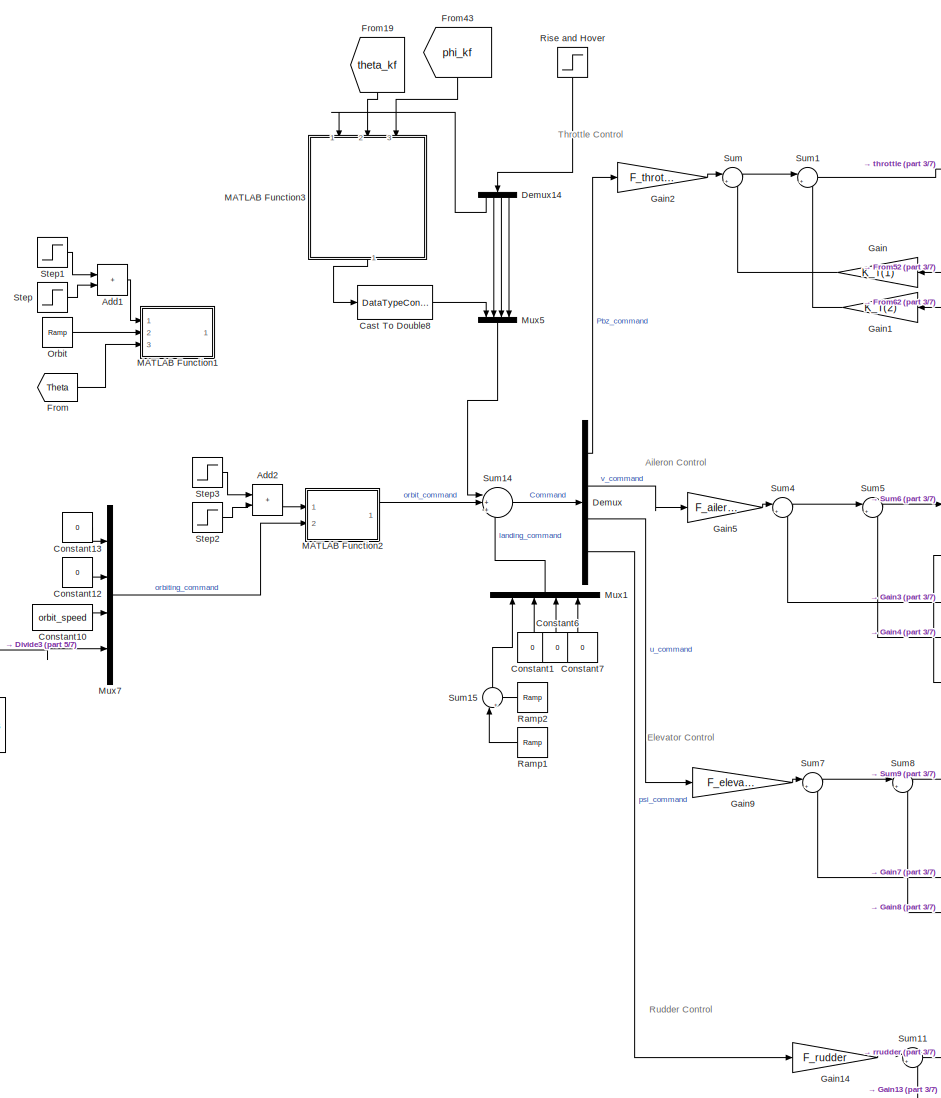
[diagram: root canvas - part 1/7, middle left region]
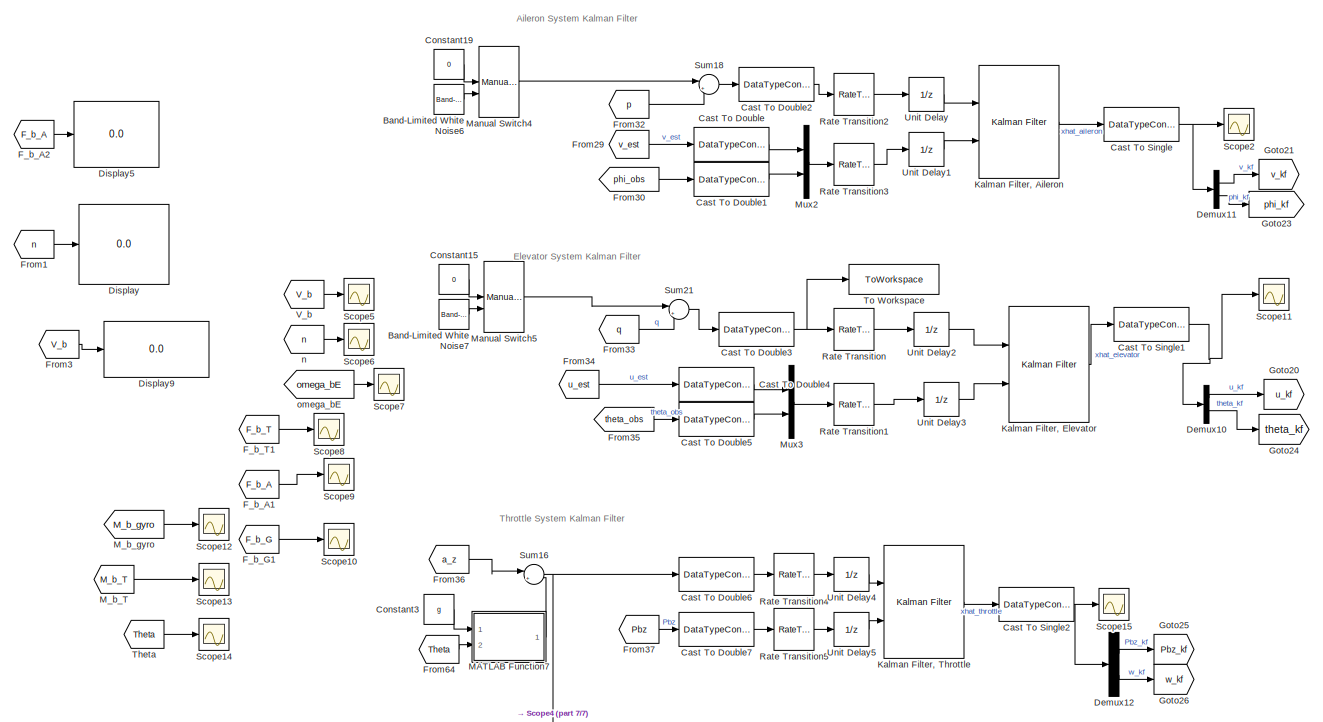
[diagram: root canvas - part 2/7, top right region]
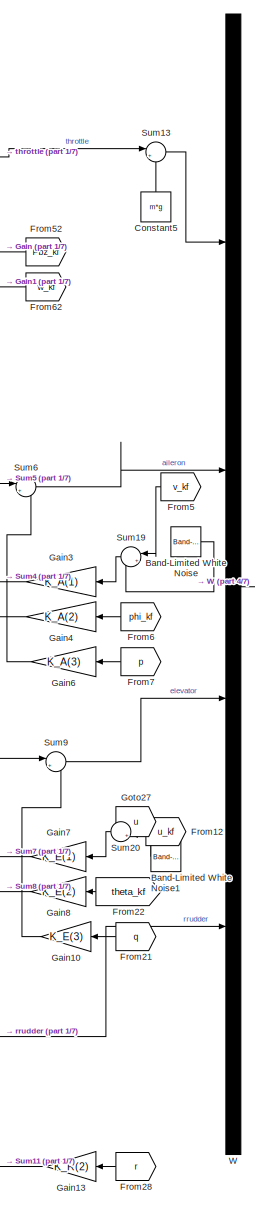
[diagram: root canvas - part 3/7, left side, full height]
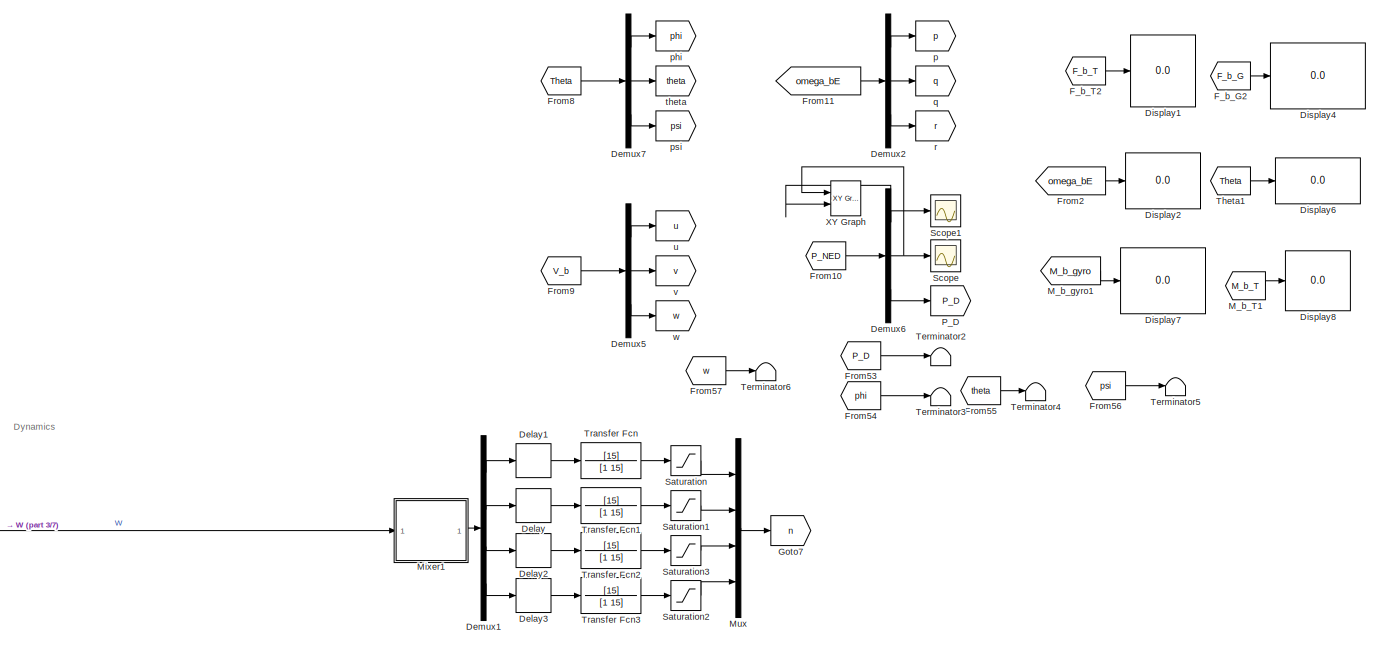
[diagram: root canvas - part 4/7, top center region]
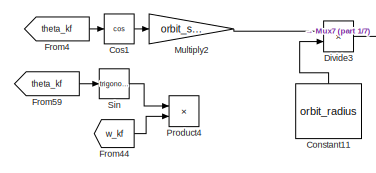
[diagram: root canvas - part 5/7, middle left region]
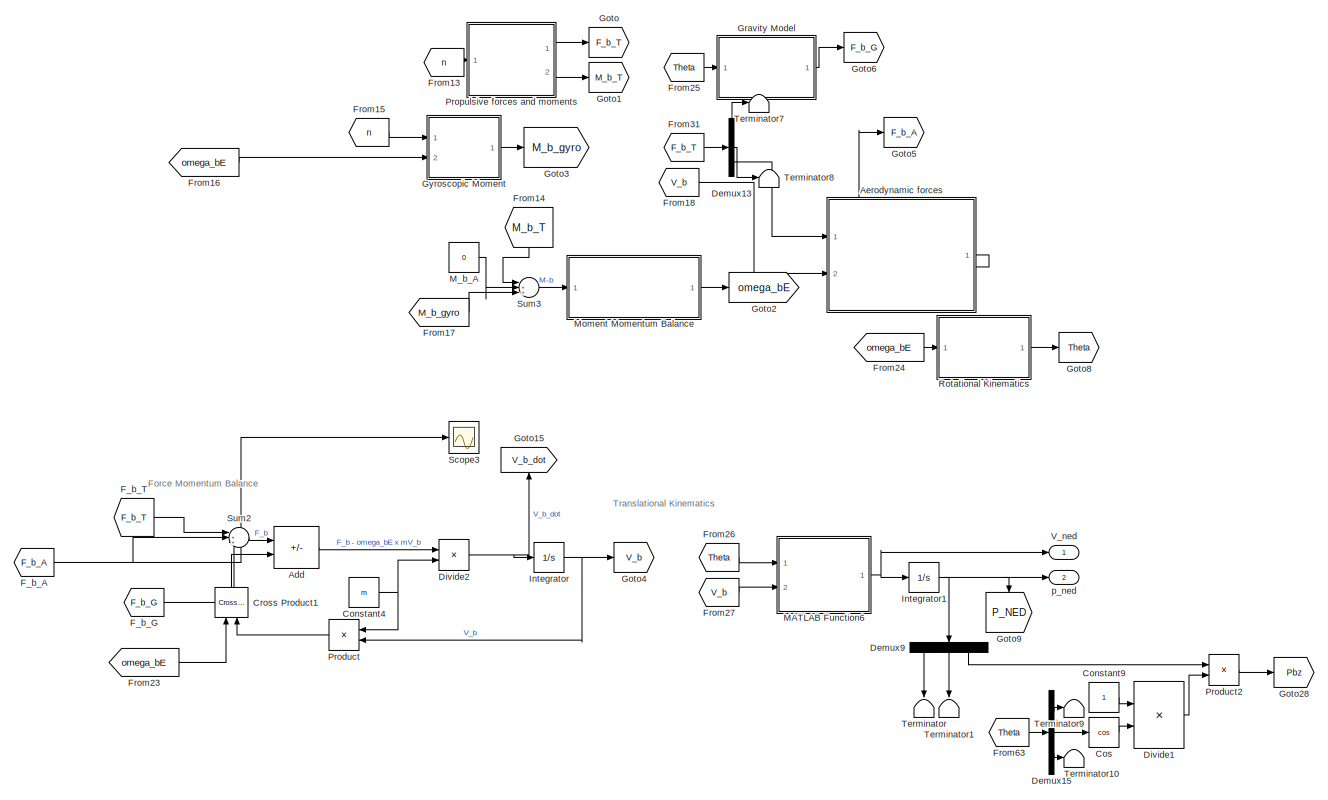
[diagram: root canvas - part 6/7, bottom center region]
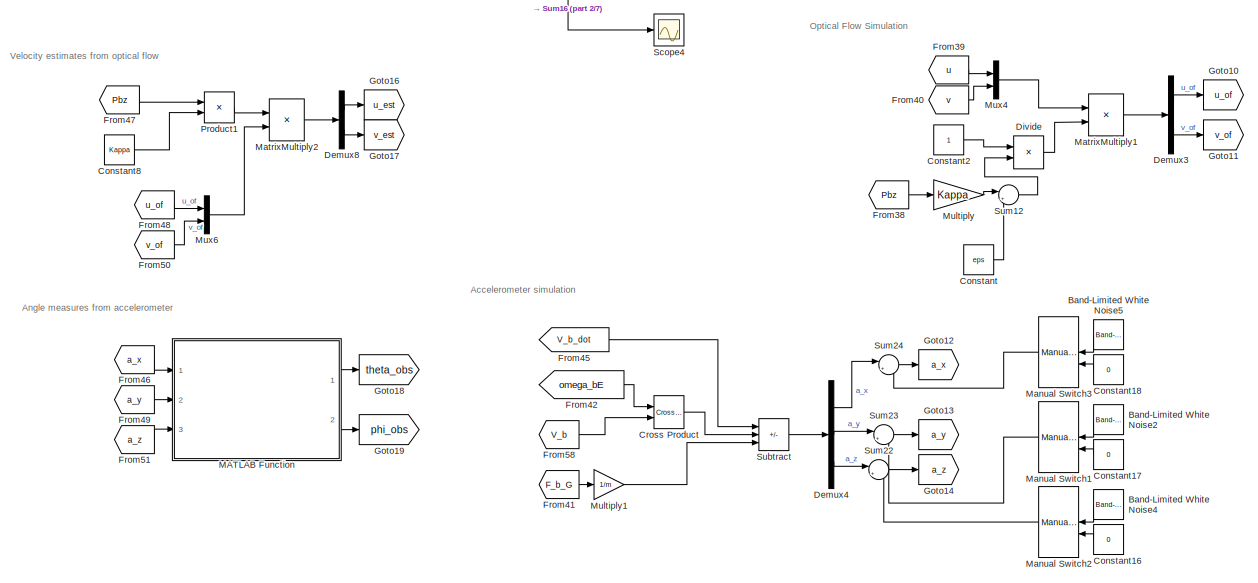
[diagram: root canvas - part 7/7, bottom right region]
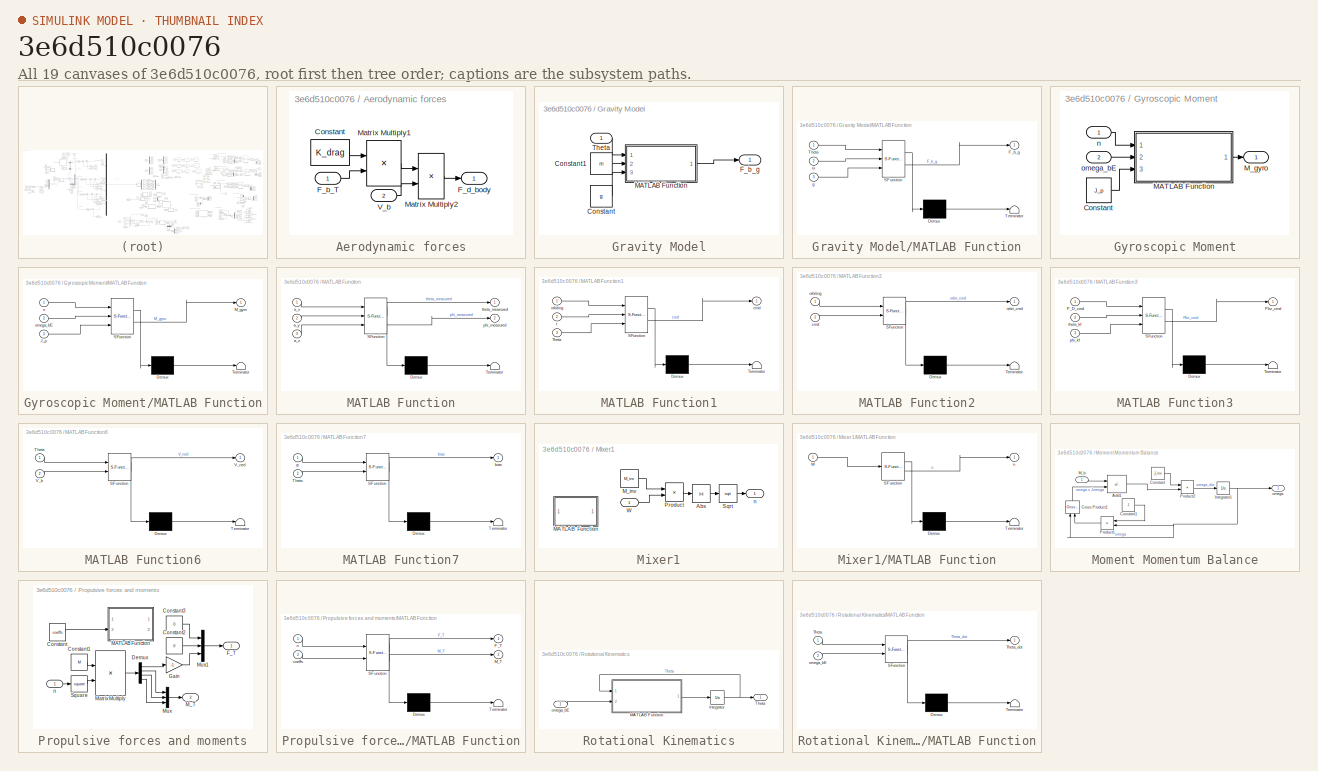
[diagram: thumbnail index - all 19 canvases of the model, root first then tree order]
MODEL slx_3e6d510c0076
KIND model
CONFIG AbsTol = auto
CONFIG EnableMultiTasking = off
CONFIG FixedStep = auto
CONFIG MaxStep = auto
CONFIG MinStep = auto
CONFIG RelTol = 1e-3
CONFIG SampleTimeConstraint = Unconstrained
CONFIG SolverName = VariableStepAuto
CONFIG StartTime = 0.0
CONFIG StopTime = 50
WORKSPACE source: mxarray member
WORKSPACE Kappa = 1
BLOCK [Sum] Add
  IconShape = rectangular
  Inputs = +-
  Ports = [2, 1]
BLOCK [Sum] Add1
  Commented = on
  IconShape = rectangular
  Ports = [2, 1]
BLOCK [Sum] Add2
  IconShape = rectangular
  Ports = [2, 1]
BLOCK [SubSystem] Aerodynamic forces
  Ports = [2, 1]
  RequestExecContextInheritance = off
BLOCK [Constant] Aerodynamic forces/Constant
  Value = K_drag
BLOCK [Inport] Aerodynamic forces/F_b_T
BLOCK [Outport] Aerodynamic forces/F_d_body
BLOCK [Product] Aerodynamic forces/Matrix Multiply1
  Ports = [2, 1]
BLOCK [Product] Aerodynamic forces/Matrix Multiply2
  Multiplication = Matrix(*)
  Ports = [2, 1]
BLOCK [Inport] Aerodynamic forces/V_b
  Port = 2
BLOCK [Reference] Band-Limited White Noise  REF=simulink/Sources/Band-Limited
White Noise
  Ports = [0, 1]
  SourceBlock = simulink/Sources/Band-Limited\nWhite Noise
  SourceProductBaseCode = SL
  SourceType = Band-Limited White Noise.
BLOCK [Reference] Band-Limited White Noise1  REF=simulink/Sources/Band-Limited
White Noise
  Ports = [0, 1]
  SourceBlock = simulink/Sources/Band-Limited\nWhite Noise
  SourceProductBaseCode = SL
  SourceType = Band-Limited White Noise.
BLOCK [Reference] Band-Limited White Noise2  REF=simulink/Sources/Band-Limited
White Noise
  NameLocation = top
  Ports = [0, 1]
  SourceBlock = simulink/Sources/Band-Limited\nWhite Noise
  SourceProductBaseCode = SL
  SourceType = Band-Limited White Noise.
BLOCK [Reference] Band-Limited White Noise4  REF=simulink/Sources/Band-Limited
White Noise
  NameLocation = top
  Ports = [0, 1]
  SourceBlock = simulink/Sources/Band-Limited\nWhite Noise
  SourceProductBaseCode = SL
  SourceType = Band-Limited White Noise.
BLOCK [Reference] Band-Limited White Noise5  REF=simulink/Sources/Band-Limited
White Noise
  NameLocation = top
  Ports = [0, 1]
  SourceBlock = simulink/Sources/Band-Limited\nWhite Noise
  SourceProductBaseCode = SL
  SourceType = Band-Limited White Noise.
BLOCK [Reference] Band-Limited White Noise6  REF=simulink/Sources/Band-Limited
White Noise
  Ports = [0, 1]
  SourceBlock = simulink/Sources/Band-Limited\nWhite Noise
  SourceProductBaseCode = SL
  SourceType = Band-Limited White Noise.
BLOCK [Reference] Band-Limited White Noise7  REF=simulink/Sources/Band-Limited
White Noise
  Ports = [0, 1]
  SourceBlock = simulink/Sources/Band-Limited\nWhite Noise
  SourceProductBaseCode = SL
  SourceType = Band-Limited White Noise.
BLOCK [DataTypeConversion] Cast To Double
  OutDataTypeStr = double
  RndMeth = Floor
  SaturateOnIntegerOverflow = off
BLOCK [DataTypeConversion] Cast To Double1
  OutDataTypeStr = double
  RndMeth = Floor
  SaturateOnIntegerOverflow = off
BLOCK [DataTypeConversion] Cast To Double2
  OutDataTypeStr = double
  RndMeth = Floor
  SaturateOnIntegerOverflow = off
BLOCK [DataTypeConversion] Cast To Double3
  OutDataTypeStr = double
  RndMeth = Floor
  SaturateOnIntegerOverflow = off
BLOCK [DataTypeConversion] Cast To Double4
  OutDataTypeStr = double
  RndMeth = Floor
  SaturateOnIntegerOverflow = off
BLOCK [DataTypeConversion] Cast To Double5
  OutDataTypeStr = double
  RndMeth = Floor
  SaturateOnIntegerOverflow = off
BLOCK [DataTypeConversion] Cast To Double6
  OutDataTypeStr = double
  RndMeth = Floor
  SaturateOnIntegerOverflow = off
BLOCK [DataTypeConversion] Cast To Double7
  OutDataTypeStr = double
  RndMeth = Floor
  SaturateOnIntegerOverflow = off
BLOCK [DataTypeConversion] Cast To Double8
  OutDataTypeStr = double
  RndMeth = Floor
  SaturateOnIntegerOverflow = off
BLOCK [DataTypeConversion] Cast To Single
  OutDataTypeStr = single
  RndMeth = Floor
  SaturateOnIntegerOverflow = off
BLOCK [DataTypeConversion] Cast To Single1
  OutDataTypeStr = single
  RndMeth = Floor
  SaturateOnIntegerOverflow = off
BLOCK [DataTypeConversion] Cast To Single2
  OutDataTypeStr = single
  RndMeth = Floor
  SaturateOnIntegerOverflow = off
BLOCK [Constant] Constant
  Value = eps
BLOCK [Constant] Constant1
  NameLocation = right
  Value = 0
BLOCK [Constant] Constant10
  Value = orbit_speed
BLOCK [Constant] Constant11
  NameLocation = right
  Value = orbit_radius
BLOCK [Constant] Constant12
  Value = 0
BLOCK [Constant] Constant13
  Value = 0
BLOCK [Constant] Constant15
  Value = 0
BLOCK [Constant] Constant16
  NameLocation = top
  Value = 0
BLOCK [Constant] Constant17
  NameLocation = top
  Value = 0
BLOCK [Constant] Constant18
  NameLocation = top
  Value = 0
BLOCK [Constant] Constant19
  Value = 0
BLOCK [Constant] Constant2
BLOCK [Constant] Constant3
  Value = g
BLOCK [Constant] Constant4
  Value = m
BLOCK [Constant] Constant5
  NameLocation = right
  Value = m*g
BLOCK [Constant] Constant6
  NameLocation = right
  Value = 0
BLOCK [Constant] Constant7
  NameLocation = right
  Value = 0
BLOCK [Constant] Constant8
  Value = Kappa
BLOCK [Constant] Constant9
BLOCK [Trigonometry] Cos
  Operator = cos
  Ports = [1, 1]
BLOCK [Trigonometry] Cos1
  Operator = cos
  Ports = [1, 1]
BLOCK [Reference] Cross Product  REF=vrlib/Utilities/Cross Product
  Ports = [2, 1]
  SourceBlock = vrlib/Utilities/Cross Product
  SourceProductBaseCode = SL
  SourceType = Cross Product
BLOCK [Reference] Cross Product1  REF=vrlib/Utilities/Cross Product
  NameLocation = right
  Ports = [2, 1]
  SourceBlock = vrlib/Utilities/Cross Product
  SourceProductBaseCode = SL
  SourceType = Cross Product
BLOCK [Delay] Delay
  InputPortMap = u0
  Ports = [1, 1]
  SampleTime = 1/200
BLOCK [Delay] Delay1
  InputPortMap = u0
  Ports = [1, 1]
  SampleTime = 1/200
BLOCK [Delay] Delay2
  InputPortMap = u0
  Ports = [1, 1]
  SampleTime = 1/200
BLOCK [Delay] Delay3
  InputPortMap = u0
  Ports = [1, 1]
  SampleTime = 1/200
BLOCK [Demux] Demux
  Ports = [1, 4]
BLOCK [Demux] Demux1
  Ports = [1, 4]
BLOCK [Demux] Demux10
  Outputs = 2
  Ports = [1, 2]
BLOCK [Demux] Demux11
  Outputs = 2
  Ports = [1, 2]
BLOCK [Demux] Demux12
  Outputs = 2
  Ports = [1, 2]
BLOCK [Demux] Demux13
  Outputs = 3
  Ports = [1, 3]
BLOCK [Demux] Demux14
  NameLocation = left
  Ports = [1, 4]
BLOCK [Demux] Demux15
  Outputs = 3
  Ports = [1, 3]
BLOCK [Demux] Demux2
  Outputs = 3
  Ports = [1, 3]
BLOCK [Demux] Demux3
  Outputs = 2
  Ports = [1, 2]
BLOCK [Demux] Demux4
  Outputs = 3
  Ports = [1, 3]
BLOCK [Demux] Demux5
  Outputs = 3
  Ports = [1, 3]
BLOCK [Demux] Demux6
  Outputs = 3
  Ports = [1, 3]
BLOCK [Demux] Demux7
  Outputs = 3
  Ports = [1, 3]
BLOCK [Demux] Demux8
  Outputs = 2
  Ports = [1, 2]
BLOCK [Demux] Demux9
  NameLocation = left
  Outputs = 3
  Ports = [1, 3]
BLOCK [Display] Display
  Decimation = 1
  Ports = [1]
BLOCK [Display] Display1
  Decimation = 1
  Ports = [1]
BLOCK [Display] Display2
  Decimation = 1
  Ports = [1]
BLOCK [Display] Display4
  Decimation = 1
  Ports = [1]
BLOCK [Display] Display5
  Decimation = 1
  Ports = [1]
BLOCK [Display] Display6
  Decimation = 1
  Ports = [1]
BLOCK [Display] Display7
  Decimation = 1
  Ports = [1]
BLOCK [Display] Display8
  Decimation = 1
  Ports = [1]
BLOCK [Display] Display9
  Decimation = 1
  Ports = [1]
BLOCK [Product] Divide
  Inputs = */
  Ports = [2, 1]
BLOCK [Product] Divide1
  Inputs = */
  Ports = [2, 1]
BLOCK [Product] Divide2
  Inputs = */
  Ports = [2, 1]
BLOCK [Product] Divide3
  Inputs = */
  Ports = [2, 1]
BLOCK [From] F_b_A
  GotoTag = F_b_A
BLOCK [From] F_b_A1
  GotoTag = F_b_A
BLOCK [From] F_b_A2
  GotoTag = F_b_A
BLOCK [From] F_b_G
  GotoTag = F_b_G
BLOCK [From] F_b_G1
  GotoTag = F_b_G
BLOCK [From] F_b_G2
  GotoTag = F_b_G
BLOCK [From] F_b_T
  GotoTag = F_b_T
BLOCK [From] F_b_T1
  GotoTag = F_b_T
BLOCK [From] F_b_T2
  GotoTag = F_b_T
BLOCK [From] From
  Commented = on
  GotoTag = Theta
BLOCK [From] From1
  GotoTag = n
BLOCK [From] From10
  GotoTag = P_NED
BLOCK [From] From11
  GotoTag = omega_bE
BLOCK [From] From12
  GotoTag = u_kf
  NameLocation = top
BLOCK [From] From13
  GotoTag = n
BLOCK [From] From14
  GotoTag = M_b_T
  NameLocation = left
BLOCK [From] From15
  GotoTag = n
BLOCK [From] From16
  GotoTag = omega_bE
BLOCK [From] From17
  GotoTag = M_b_gyro
BLOCK [From] From18
  GotoTag = V_b
BLOCK [From] From19
  GotoTag = theta_kf
  NameLocation = left
BLOCK [From] From2
  GotoTag = omega_bE
BLOCK [From] From21
  GotoTag = q
  NameLocation = top
BLOCK [From] From22
  GotoTag = theta_kf
  NameLocation = top
BLOCK [From] From23
  GotoTag = omega_bE
BLOCK [From] From24
  GotoTag = omega_bE
BLOCK [From] From25
  GotoTag = Theta
BLOCK [From] From26
  GotoTag = Theta
BLOCK [From] From27
  GotoTag = V_b
BLOCK [From] From28
  GotoTag = r
  NameLocation = top
BLOCK [From] From29
  GotoTag = v_est
BLOCK [From] From3
  GotoTag = V_b
BLOCK [From] From30
  GotoTag = phi_obs
BLOCK [From] From31
  GotoTag = F_b_T
BLOCK [From] From32
  GotoTag = p
BLOCK [From] From33
  GotoTag = q
BLOCK [From] From34
  GotoTag = u_est
BLOCK [From] From35
  GotoTag = theta_obs
BLOCK [From] From36
  GotoTag = a_z
BLOCK [From] From37
  GotoTag = Pbz
BLOCK [From] From38
  GotoTag = Pbz
BLOCK [From] From39
  GotoTag = u
BLOCK [From] From4
  GotoTag = theta_kf
BLOCK [From] From40
  GotoTag = v
BLOCK [From] From41
  GotoTag = F_b_G
BLOCK [From] From42
  GotoTag = omega_bE
BLOCK [From] From43
  GotoTag = phi_kf
  NameLocation = left
BLOCK [From] From44
  Commented = on
  GotoTag = w_kf
BLOCK [From] From45
  GotoTag = V_b_dot
BLOCK [From] From46
  GotoTag = a_x
BLOCK [From] From47
  GotoTag = Pbz
BLOCK [From] From48
  GotoTag = u_of
BLOCK [From] From49
  GotoTag = a_y
BLOCK [From] From5
  GotoTag = v_kf
  NameLocation = top
BLOCK [From] From50
  GotoTag = v_of
BLOCK [From] From51
  GotoTag = a_z
BLOCK [From] From52
  GotoTag = Pbz_kf
  NameLocation = top
BLOCK [From] From53
  GotoTag = P_D
BLOCK [From] From54
  GotoTag = phi
BLOCK [From] From55
  GotoTag = theta
BLOCK [From] From56
  GotoTag = psi
BLOCK [From] From57
  GotoTag = w
BLOCK [From] From58
  GotoTag = V_b
BLOCK [From] From59
  Commented = on
  GotoTag = theta_kf
BLOCK [From] From6
  GotoTag = phi_kf
  NameLocation = top
BLOCK [From] From62
  GotoTag = w_kf
  NameLocation = top
BLOCK [From] From63
  GotoTag = Theta
BLOCK [From] From64
  GotoTag = Theta
BLOCK [From] From7
  GotoTag = p
  NameLocation = top
BLOCK [From] From8
  GotoTag = Theta
BLOCK [From] From9
  GotoTag = V_b
BLOCK [Gain] Gain
  Gain = K_T(1)
BLOCK [Gain] Gain1
  Gain = K_T(2)
BLOCK [Gain] Gain10
  Gain = K_E(3)
BLOCK [Gain] Gain13
  Gain = K_R(2)
BLOCK [Gain] Gain14
  Gain = F_rudder
BLOCK [Gain] Gain2
  Gain = F_throttle
BLOCK [Gain] Gain3
  Gain = K_A(1)
BLOCK [Gain] Gain4
  Gain = K_A(2)
BLOCK [Gain] Gain5
  Gain = F_aileron
BLOCK [Gain] Gain6
  Gain = K_A(3)
BLOCK [Gain] Gain7
  Gain = K_E(1)
BLOCK [Gain] Gain8
  Gain = K_E(2)
BLOCK [Gain] Gain9
  Gain = F_elevator
BLOCK [Goto] Goto
  GotoTag = F_b_T
BLOCK [Goto] Goto1
  GotoTag = M_b_T
BLOCK [Goto] Goto10
  GotoTag = u_of
BLOCK [Goto] Goto11
  GotoTag = v_of
BLOCK [Goto] Goto12
  GotoTag = a_x
BLOCK [Goto] Goto13
  GotoTag = a_y
BLOCK [Goto] Goto14
  GotoTag = a_z
BLOCK [Goto] Goto15
  GotoTag = V_b_dot
  NameLocation = right
BLOCK [Goto] Goto16
  GotoTag = u_est
BLOCK [Goto] Goto17
  GotoTag = v_est
BLOCK [Goto] Goto18
  GotoTag = theta_obs
BLOCK [Goto] Goto19
  GotoTag = phi_obs
BLOCK [Goto] Goto2
  GotoTag = omega_bE
BLOCK [Goto] Goto20
  GotoTag = u_kf
BLOCK [Goto] Goto21
  GotoTag = v_kf
BLOCK [Goto] Goto23
  GotoTag = phi_kf
BLOCK [Goto] Goto24
  GotoTag = theta_kf
BLOCK [Goto] Goto25
  GotoTag = Pbz_kf
BLOCK [Goto] Goto26
  GotoTag = w_kf
BLOCK [Goto] Goto27
  Commented = on
  GotoTag = u
BLOCK [Goto] Goto28
  GotoTag = Pbz
BLOCK [Goto] Goto3
  GotoTag = M_b_gyro
BLOCK [Goto] Goto4
  GotoTag = V_b
BLOCK [Goto] Goto5
  GotoTag = F_b_A
BLOCK [Goto] Goto6
  GotoTag = F_b_G
BLOCK [Goto] Goto7
  GotoTag = n
BLOCK [Goto] Goto8
  GotoTag = Theta
BLOCK [Goto] Goto9
  GotoTag = P_NED
  NameLocation = left
BLOCK [SubSystem] Gravity Model
  Ports = [1, 1]
  RequestExecContextInheritance = off
BLOCK [Constant] Gravity Model/Constant
  Value = g
BLOCK [Constant] Gravity Model/Constant1
  Value = m
BLOCK [Outport] Gravity Model/F_b_g
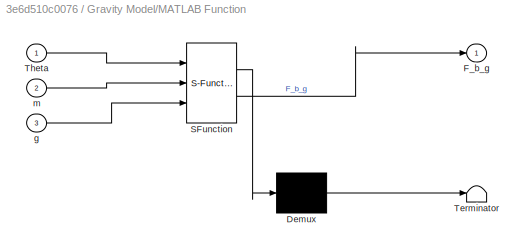
BLOCK [SubSystem] Gravity Model/MATLAB Function
  ErrorFcn = Stateflow.Translate.translate
  PermitHierarchicalResolution = ExplicitOnly
  Ports = [3, 1]
  RequestExecContextInheritance = off
  SFBlockType = MATLAB Function
  TreatAsAtomicUnit = on
BLOCK [Demux] Gravity Model/MATLAB Function/ Demux 
  Outputs = 1
  Ports = [1, 1]
BLOCK [S-Function] Gravity Model/MATLAB Function/ SFunction 
  EnableBusSupport = on
  FunctionName = sf_sfun
  PortCounts = [3 2]
  Ports = [3, 2]
  SFcnIsStateOwnerBlock = off
  SFunctionDeploymentMode = off
  Tag = Stateflow S-Function 12
BLOCK [Terminator] Gravity Model/MATLAB Function/ Terminator 
BLOCK [Outport] Gravity Model/MATLAB Function/F_b_g
BLOCK [Inport] Gravity Model/MATLAB Function/Theta
BLOCK [Inport] Gravity Model/MATLAB Function/g
  Port = 3
BLOCK [Inport] Gravity Model/MATLAB Function/m
  Port = 2
BLOCK [Inport] Gravity Model/Theta
BLOCK [SubSystem] Gyroscopic Moment
  Ports = [2, 1]
  RequestExecContextInheritance = off
BLOCK [Constant] Gyroscopic Moment/Constant
  Value = J_p
BLOCK [SubSystem] Gyroscopic Moment/MATLAB Function
  ErrorFcn = Stateflow.Translate.translate
  PermitHierarchicalResolution = ExplicitOnly
  Ports = [3, 1]
  RequestExecContextInheritance = off
  SFBlockType = MATLAB Function
  TreatAsAtomicUnit = on
BLOCK [Demux] Gyroscopic Moment/MATLAB Function/ Demux 
  Outputs = 1
  Ports = [1, 1]
BLOCK [S-Function] Gyroscopic Moment/MATLAB Function/ SFunction 
  EnableBusSupport = on
  FunctionName = sf_sfun
  PortCounts = [3 2]
  Ports = [3, 2]
  SFcnIsStateOwnerBlock = off
  SFunctionDeploymentMode = off
  Tag = Stateflow S-Function 11
BLOCK [Terminator] Gyroscopic Moment/MATLAB Function/ Terminator 
BLOCK [Inport] Gyroscopic Moment/MATLAB Function/J_p
  Port = 3
BLOCK [Outport] Gyroscopic Moment/MATLAB Function/M_gyro
BLOCK [Inport] Gyroscopic Moment/MATLAB Function/n
BLOCK [Inport] Gyroscopic Moment/MATLAB Function/omega_bE
  Port = 2
BLOCK [Outport] Gyroscopic Moment/M_gyro
BLOCK [Inport] Gyroscopic Moment/n
BLOCK [Inport] Gyroscopic Moment/omega_bE
  Port = 2
BLOCK [Integrator] Integrator
  AttributesFormatString = %<InitialCondition>
  InitialCondition = V_b_0
  Ports = [1, 1]
BLOCK [Integrator] Integrator1
  AttributesFormatString = %<InitialCondition>
  InitialCondition = p_ned_0
  Ports = [1, 1]
BLOCK [Reference] Kalman Filter, Aileron  REF=ctrlSharedLib/Kalman Filter
  Ports = [2, 1]
  SourceBlock = ctrlSharedLib/Kalman Filter
  SourceProductBaseCode = CT,ID
  SourceType = ctrlKalmanFilter
BLOCK [Reference] Kalman Filter, Elevator  REF=ctrlSharedLib/Kalman Filter
  Ports = [2, 1]
  SourceBlock = ctrlSharedLib/Kalman Filter
  SourceProductBaseCode = CT,ID
  SourceType = ctrlKalmanFilter
BLOCK [Reference] Kalman Filter, Throttle  REF=ctrlSharedLib/Kalman Filter
  Ports = [2, 1]
  SourceBlock = ctrlSharedLib/Kalman Filter
  SourceProductBaseCode = CT,ID
  SourceType = ctrlKalmanFilter
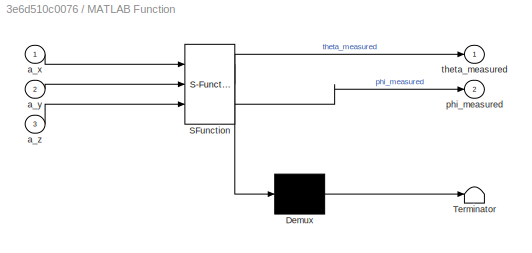
BLOCK [SubSystem] MATLAB Function
  ErrorFcn = Stateflow.Translate.translate
  PermitHierarchicalResolution = ExplicitOnly
  Ports = [3, 2]
  RequestExecContextInheritance = off
  SFBlockType = MATLAB Function
  TreatAsAtomicUnit = on
BLOCK [Demux] MATLAB Function/ Demux 
  Outputs = 1
  Ports = [1, 1]
BLOCK [S-Function] MATLAB Function/ SFunction 
  EnableBusSupport = on
  FunctionName = sf_sfun
  PortCounts = [3 3]
  Ports = [3, 3]
  SFcnIsStateOwnerBlock = off
  SFunctionDeploymentMode = off
  Tag = Stateflow S-Function 2
BLOCK [Terminator] MATLAB Function/ Terminator 
BLOCK [Inport] MATLAB Function/a_x
BLOCK [Inport] MATLAB Function/a_y
  Port = 2
BLOCK [Inport] MATLAB Function/a_z
  Port = 3
BLOCK [Outport] MATLAB Function/phi_measured
  Port = 2
BLOCK [Outport] MATLAB Function/theta_measured
BLOCK [SubSystem] MATLAB Function1
  Commented = on
  ErrorFcn = Stateflow.Translate.translate
  PermitHierarchicalResolution = ExplicitOnly
  Ports = [3, 1]
  RequestExecContextInheritance = off
  SFBlockType = MATLAB Function
  TreatAsAtomicUnit = on
BLOCK [Demux] MATLAB Function1/ Demux 
  Outputs = 1
  Ports = [1, 1]
BLOCK [S-Function] MATLAB Function1/ SFunction 
  EnableBusSupport = on
  FunctionName = sf_sfun
  PortCounts = [3 2]
  Ports = [3, 2]
  SFcnIsStateOwnerBlock = off
  SFunctionDeploymentMode = off
  Tag = Stateflow S-Function 1
BLOCK [Terminator] MATLAB Function1/ Terminator 
BLOCK [Inport] MATLAB Function1/Theta
  Port = 3
BLOCK [Outport] MATLAB Function1/cmd
BLOCK [Inport] MATLAB Function1/orbiting
BLOCK [Inport] MATLAB Function1/t
  Port = 2
BLOCK [SubSystem] MATLAB Function2
  ErrorFcn = Stateflow.Translate.translate
  PermitHierarchicalResolution = ExplicitOnly
  Ports = [2, 1]
  RequestExecContextInheritance = off
  SFBlockType = MATLAB Function
  TreatAsAtomicUnit = on
BLOCK [Demux] MATLAB Function2/ Demux 
  Outputs = 1
  Ports = [1, 1]
BLOCK [S-Function] MATLAB Function2/ SFunction 
  EnableBusSupport = on
  FunctionName = sf_sfun
  PortCounts = [2 2]
  Ports = [2, 2]
  SFcnIsStateOwnerBlock = off
  SFunctionDeploymentMode = off
  Tag = Stateflow S-Function 3
BLOCK [Terminator] MATLAB Function2/ Terminator 
BLOCK [Inport] MATLAB Function2/cmd
  Port = 2
BLOCK [Outport] MATLAB Function2/orbit_cmd
BLOCK [Inport] MATLAB Function2/orbiting
BLOCK [SubSystem] MATLAB Function3
  ErrorFcn = Stateflow.Translate.translate
  NameLocation = left
  PermitHierarchicalResolution = ExplicitOnly
  Ports = [3, 1]
  RequestExecContextInheritance = off
  SFBlockType = MATLAB Function
  TreatAsAtomicUnit = on
BLOCK [Demux] MATLAB Function3/ Demux 
  Outputs = 1
  Ports = [1, 1]
BLOCK [S-Function] MATLAB Function3/ SFunction 
  EnableBusSupport = on
  FunctionName = sf_sfun
  PortCounts = [3 2]
  Ports = [3, 2]
  SFcnIsStateOwnerBlock = off
  SFunctionDeploymentMode = off
  Tag = Stateflow S-Function 4
BLOCK [Terminator] MATLAB Function3/ Terminator 
BLOCK [Inport] MATLAB Function3/P_D_cmd
BLOCK [Outport] MATLAB Function3/Pbz_cmd
BLOCK [Inport] MATLAB Function3/phi_kf
  Port = 3
BLOCK [Inport] MATLAB Function3/theta_kf
  Port = 2
BLOCK [SubSystem] MATLAB Function6
  ErrorFcn = Stateflow.Translate.translate
  PermitHierarchicalResolution = ExplicitOnly
  Ports = [2, 1]
  RequestExecContextInheritance = off
  SFBlockType = MATLAB Function
  TreatAsAtomicUnit = on
BLOCK [Demux] MATLAB Function6/ Demux 
  Outputs = 1
  Ports = [1, 1]
BLOCK [S-Function] MATLAB Function6/ SFunction 
  EnableBusSupport = on
  FunctionName = sf_sfun
  PortCounts = [2 2]
  Ports = [2, 2]
  SFcnIsStateOwnerBlock = off
  SFunctionDeploymentMode = off
  Tag = Stateflow S-Function 14
BLOCK [Terminator] MATLAB Function6/ Terminator 
BLOCK [Inport] MATLAB Function6/Theta
BLOCK [Inport] MATLAB Function6/V_b
  Port = 2
BLOCK [Outport] MATLAB Function6/V_ned
BLOCK [SubSystem] MATLAB Function7
  ErrorFcn = Stateflow.Translate.translate
  PermitHierarchicalResolution = ExplicitOnly
  Ports = [2, 1]
  RequestExecContextInheritance = off
  SFBlockType = MATLAB Function
  TreatAsAtomicUnit = on
BLOCK [Demux] MATLAB Function7/ Demux 
  Outputs = 1
  Ports = [1, 1]
BLOCK [S-Function] MATLAB Function7/ SFunction 
  EnableBusSupport = on
  FunctionName = sf_sfun
  PortCounts = [2 2]
  Ports = [2, 2]
  SFcnIsStateOwnerBlock = off
  SFunctionDeploymentMode = off
  Tag = Stateflow S-Function 7
BLOCK [Terminator] MATLAB Function7/ Terminator 
BLOCK [Inport] MATLAB Function7/Theta
  Port = 2
BLOCK [Outport] MATLAB Function7/bias
BLOCK [Inport] MATLAB Function7/g
BLOCK [Constant] M_b_A
  Value = 0
BLOCK [From] M_b_T
  GotoTag = M_b_T
BLOCK [From] M_b_T1
  GotoTag = M_b_T
BLOCK [From] M_b_gyro
  GotoTag = M_b_gyro
BLOCK [From] M_b_gyro1
  GotoTag = M_b_gyro
BLOCK [ManualSwitch] Manual Switch1
  CurrentSetting = 0
  NameLocation = top
BLOCK [ManualSwitch] Manual Switch2
  CurrentSetting = 0
  NameLocation = top
BLOCK [ManualSwitch] Manual Switch3
  CurrentSetting = 0
  NameLocation = top
BLOCK [ManualSwitch] Manual Switch4
BLOCK [ManualSwitch] Manual Switch5
BLOCK [Product] MatrixMultiply1
  Ports = [2, 1]
BLOCK [Product] MatrixMultiply2
  Ports = [2, 1]
BLOCK [SubSystem] Mixer1
  Ports = [1, 1]
  RequestExecContextInheritance = off
BLOCK [Abs] Mixer1/Abs
  SaturateOnIntegerOverflow = off
BLOCK [SubSystem] Mixer1/MATLAB Function
  Commented = on
  ErrorFcn = Stateflow.Translate.translate
  PermitHierarchicalResolution = ExplicitOnly
  Ports = [1, 1]
  RequestExecContextInheritance = off
  SFBlockType = MATLAB Function
  TreatAsAtomicUnit = on
BLOCK [Demux] Mixer1/MATLAB Function/ Demux 
  Outputs = 1
  Ports = [1, 1]
BLOCK [S-Function] Mixer1/MATLAB Function/ SFunction 
  EnableBusSupport = on
  FunctionName = sf_sfun
  PortCounts = [1 2]
  Ports = [1, 2]
  SFcnIsStateOwnerBlock = off
  SFunctionDeploymentMode = off
  Tag = Stateflow S-Function 8
BLOCK [Terminator] Mixer1/MATLAB Function/ Terminator 
BLOCK [Inport] Mixer1/MATLAB Function/W
BLOCK [Outport] Mixer1/MATLAB Function/n
BLOCK [Constant] Mixer1/M_inv
  Value = M_inv
BLOCK [Product] Mixer1/Product
  Multiplication = Matrix(*)
  Ports = [2, 1]
BLOCK [Sqrt] Mixer1/Sqrt
BLOCK [Inport] Mixer1/W
BLOCK [Outport] Mixer1/n
BLOCK [SubSystem] Moment Momentum Balance
  Ports = [1, 1]
  RequestExecContextInheritance = off
BLOCK [Sum] Moment Momentum Balance/Add1
  IconShape = rectangular
  Inputs = +-
  Ports = [2, 1]
BLOCK [Constant] Moment Momentum Balance/Constant
  Value = J_inv
BLOCK [Constant] Moment Momentum Balance/Constant1
  Value = J
BLOCK [Reference] Moment Momentum Balance/Cross Product1  REF=vrlib/Utilities/Cross Product
  NameLocation = right
  Ports = [2, 1]
  SourceBlock = vrlib/Utilities/Cross Product
  SourceProductBaseCode = SL
  SourceType = Cross Product
BLOCK [Integrator] Moment Momentum Balance/Integrator1
  AttributesFormatString = %<InitialCondition>
  InitialCondition = omega_0
  Ports = [1, 1]
BLOCK [Inport] Moment Momentum Balance/M_b
BLOCK [Product] Moment Momentum Balance/Product1
  Multiplication = Matrix(*)
  NameLocation = top
  Ports = [2, 1]
BLOCK [Product] Moment Momentum Balance/Product2
  Multiplication = Matrix(*)
  Ports = [2, 1]
BLOCK [Outport] Moment Momentum Balance/omega
BLOCK [Gain] Multiply
  Gain = Kappa
BLOCK [Gain] Multiply1
  Gain = 1/m
BLOCK [Gain] Multiply2
  Gain = orbit_speed
BLOCK [Mux] Mux
  DisplayOption = bar
  Ports = [4, 1]
BLOCK [Mux] Mux1
  DisplayOption = bar
  NameLocation = right
  Ports = [4, 1]
BLOCK [Mux] Mux2
  DisplayOption = bar
  Inputs = 2
  Ports = [2, 1]
BLOCK [Mux] Mux3
  DisplayOption = bar
  Inputs = 2
  Ports = [2, 1]
BLOCK [Mux] Mux4
  DisplayOption = bar
  Inputs = 2
  Ports = [2, 1]
BLOCK [Mux] Mux5
  DisplayOption = bar
  NameLocation = left
  Ports = [4, 1]
BLOCK [Mux] Mux6
  DisplayOption = bar
  Inputs = 2
  Ports = [2, 1]
BLOCK [Mux] Mux7
  DisplayOption = bar
  Ports = [4, 1]
BLOCK [Reference] Orbit  REF=simulink/Sources/Ramp
  Commented = on
  Ports = [0, 1]
  SourceBlock = simulink/Sources/Ramp
  SourceProductBaseCode = SL
  SourceType = Ramp
BLOCK [Goto] P_D
  GotoTag = P_D
BLOCK [Product] Product
  NameLocation = top
  Ports = [2, 1]
BLOCK [Product] Product1
  Ports = [2, 1]
BLOCK [Product] Product2
  Ports = [2, 1]
BLOCK [Product] Product4
  Commented = on
  Ports = [2, 1]
BLOCK [SubSystem] Propulsive forces and moments
  Ports = [1, 2]
  RequestExecContextInheritance = off
BLOCK [Constant] Propulsive forces and moments/Constant
  Commented = on
  Value = coeffs
BLOCK [Constant] Propulsive forces and moments/Constant1
  Value = M
BLOCK [Constant] Propulsive forces and moments/Constant2
  Value = 0
BLOCK [Constant] Propulsive forces and moments/Constant3
  Value = 0
BLOCK [Demux] Propulsive forces and moments/Demux
  Ports = [1, 4]
BLOCK [Outport] Propulsive forces and moments/F_T
BLOCK [Gain] Propulsive forces and moments/Gain
  Gain = -1
BLOCK [SubSystem] Propulsive forces and moments/MATLAB Function
  Commented = on
  ErrorFcn = Stateflow.Translate.translate
  PermitHierarchicalResolution = ExplicitOnly
  Ports = [2, 2]
  RequestExecContextInheritance = off
  SFBlockType = MATLAB Function
  TreatAsAtomicUnit = on
BLOCK [Demux] Propulsive forces and moments/MATLAB Function/ Demux 
  Outputs = 1
  Ports = [1, 1]
BLOCK [S-Function] Propulsive forces and moments/MATLAB Function/ SFunction 
  EnableBusSupport = on
  FunctionName = sf_sfun
  PortCounts = [2 3]
  Ports = [2, 3]
  SFcnIsStateOwnerBlock = off
  SFunctionDeploymentMode = off
  Tag = Stateflow S-Function 9
BLOCK [Terminator] Propulsive forces and moments/MATLAB Function/ Terminator 
BLOCK [Outport] Propulsive forces and moments/MATLAB Function/F_T
BLOCK [Outport] Propulsive forces and moments/MATLAB Function/M_T
  Port = 2
BLOCK [Inport] Propulsive forces and moments/MATLAB Function/coeffs
  Port = 2
BLOCK [Inport] Propulsive forces and moments/MATLAB Function/n
BLOCK [Outport] Propulsive forces and moments/M_T
  Port = 2
BLOCK [Product] Propulsive forces and moments/Matrix Multiply
  Multiplication = Matrix(*)
  Ports = [2, 1]
BLOCK [Mux] Propulsive forces and moments/Mux
  DisplayOption = bar
  Inputs = 3
  Ports = [3, 1]
BLOCK [Mux] Propulsive forces and moments/Mux1
  DisplayOption = bar
  Inputs = 3
  Ports = [3, 1]
BLOCK [Math] Propulsive forces and moments/Square
  Operator = square
  Ports = [1, 1]
BLOCK [Inport] Propulsive forces and moments/n
BLOCK [Reference] Ramp1  REF=simulink/Sources/Ramp
  NameLocation = top
  Ports = [0, 1]
  SourceBlock = simulink/Sources/Ramp
  SourceProductBaseCode = SL
  SourceType = Ramp
BLOCK [Reference] Ramp2  REF=simulink/Sources/Ramp
  NameLocation = top
  Ports = [0, 1]
  SourceBlock = simulink/Sources/Ramp
  SourceProductBaseCode = SL
  SourceType = Ramp
BLOCK [RateTransition] Rate Transition
  OutPortSampleTime = dt
BLOCK [RateTransition] Rate Transition1
  OutPortSampleTime = dt
BLOCK [RateTransition] Rate Transition2
  OutPortSampleTime = dt
BLOCK [RateTransition] Rate Transition3
  OutPortSampleTime = dt
BLOCK [RateTransition] Rate Transition4
  OutPortSampleTime = dt
BLOCK [RateTransition] Rate Transition5
  OutPortSampleTime = dt
BLOCK [Step] Rise and Hover
  After = cmd_hover
  Before = cmd_0
  NameLocation = left
  SampleTime = 0
BLOCK [SubSystem] Rotational Kinematics
  Ports = [1, 1]
  RequestExecContextInheritance = off
BLOCK [Integrator] Rotational Kinematics/Integrator
  AttributesFormatString = %<InitialCondition>
  InitialCondition = Theta_0
  Ports = [1, 1]
BLOCK [SubSystem] Rotational Kinematics/MATLAB Function
  ErrorFcn = Stateflow.Translate.translate
  PermitHierarchicalResolution = ExplicitOnly
  Ports = [2, 1]
  RequestExecContextInheritance = off
  SFBlockType = MATLAB Function
  TreatAsAtomicUnit = on
BLOCK [Demux] Rotational Kinematics/MATLAB Function/ Demux 
  Outputs = 1
  Ports = [1, 1]
BLOCK [S-Function] Rotational Kinematics/MATLAB Function/ SFunction 
  EnableBusSupport = on
  FunctionName = sf_sfun
  PortCounts = [2 2]
  Ports = [2, 2]
  SFcnIsStateOwnerBlock = off
  SFunctionDeploymentMode = off
  Tag = Stateflow S-Function 13
BLOCK [Terminator] Rotational Kinematics/MATLAB Function/ Terminator 
BLOCK [Inport] Rotational Kinematics/MATLAB Function/Theta
BLOCK [Outport] Rotational Kinematics/MATLAB Function/Theta_dot
BLOCK [Inport] Rotational Kinematics/MATLAB Function/omega_bE
  Port = 2
BLOCK [Outport] Rotational Kinematics/Theta
BLOCK [Inport] Rotational Kinematics/omega_bE
BLOCK [Saturate] Saturation
  LowerLimit = 0
  UpperLimit = 500
BLOCK [Saturate] Saturation1
  LowerLimit = 0
  UpperLimit = 500
BLOCK [Saturate] Saturation2
  LowerLimit = 0
  UpperLimit = 500
BLOCK [Saturate] Saturation3
  LowerLimit = 0
  UpperLimit = 500
BLOCK [Scope] Scope
  Commented = on
  Floating = off
  NumInputPorts = 1
  Ports = [1]
  ScopeSpecificationString = Simulink.scopes.TimeScopeBlockCfg('CurrentConfiguration', extmgr.ConfigurationSet(extmgr.Configuration('Core','General UI',true),extmgr.Configuration('Core','Source UI',true),extmgr.Configuration('Sources','WiredSimulink',true,'DataLoggingVariableName','ScopeData1'),extmgr.Configuration('Visuals','Time Domain',true),extmgr.Configuration('Tools','Plot Navigation',true),extmgr.Configuration('Tools',...<+40ch>
BLOCK [Scope] Scope1
  Commented = on
  Floating = off
  NumInputPorts = 1
  Ports = [1]
  ScopeSpecificationString = Simulink.scopes.TimeScopeBlockCfg('CurrentConfiguration', extmgr.ConfigurationSet(extmgr.Configuration('Core','General UI',true),extmgr.Configuration('Core','Source UI',true),extmgr.Configuration('Sources','WiredSimulink',true,'DataLoggingVariableName','ScopeData2'),extmgr.Configuration('Visuals','Time Domain',true),extmgr.Configuration('Tools','Plot Navigation',true),extmgr.Configuration('Tools',...<+40ch>
BLOCK [Scope] Scope10
  Floating = off
  NumInputPorts = 1
  Ports = [1]
  ScopeSpecificationString = Simulink.scopes.TimeScopeBlockCfg('CurrentConfiguration', extmgr.ConfigurationSet(extmgr.Configuration('Core','General UI',true),extmgr.Configuration('Core','Source UI',true),extmgr.Configuration('Sources','WiredSimulink',true,'DataLoggingVariableName','ScopeData10'),extmgr.Configuration('Visuals','Time Domain',true,'SerializedDisplays',{struct('MinYLimReal','-0.06461','MaxYLimReal','0.58146','YLa...<+1393ch>
BLOCK [Scope] Scope11
  Floating = off
  NumInputPorts = 1
  Ports = [1]
  ScopeSpecificationString = Simulink.scopes.TimeScopeBlockCfg('CurrentConfiguration', extmgr.ConfigurationSet(extmgr.Configuration('Core','General UI',true),extmgr.Configuration('Core','Source UI',true),extmgr.Configuration('Sources','WiredSimulink',true,'DataLoggingVariableName','xhat_elevator','DataLogging',true,'DataLoggingSaveFormat','StructureWithTime'),extmgr.Configuration('Visuals','Time Domain',true,'SerializedDispla...<+1462ch>
BLOCK [Scope] Scope12
  Floating = off
  NumInputPorts = 1
  Ports = [1]
  ScopeSpecificationString = Simulink.scopes.TimeScopeBlockCfg('CurrentConfiguration', extmgr.ConfigurationSet(extmgr.Configuration('Core','General UI',true),extmgr.Configuration('Core','Source UI',true),extmgr.Configuration('Sources','WiredSimulink',true,'DataLoggingVariableName','ScopeData12'),extmgr.Configuration('Visuals','Time Domain',true,'SerializedDisplays',{struct('MinYLimReal','-1.00000','MaxYLimReal','1.00000','YLa...<+1396ch>
BLOCK [Scope] Scope13
  Floating = off
  NumInputPorts = 1
  Ports = [1]
  ScopeSpecificationString = Simulink.scopes.TimeScopeBlockCfg('CurrentConfiguration', extmgr.ConfigurationSet(extmgr.Configuration('Core','General UI',true),extmgr.Configuration('Core','Source UI',true),extmgr.Configuration('Sources','WiredSimulink',true,'DataLoggingVariableName','ScopeData13'),extmgr.Configuration('Visuals','Time Domain',true,'SerializedDisplays',{struct('MinYLimReal','-1.00000','MaxYLimReal','1.00000','YLa...<+1387ch>
BLOCK [Scope] Scope14
  Floating = off
  NumInputPorts = 1
  Ports = [1]
  ScopeSpecificationString = Simulink.scopes.TimeScopeBlockCfg('CurrentConfiguration', extmgr.ConfigurationSet(extmgr.Configuration('Core','General UI',true),extmgr.Configuration('Core','Source UI',true),extmgr.Configuration('Sources','WiredSimulink',true,'DataLoggingVariableName','ScopeData14'),extmgr.Configuration('Visuals','Time Domain',true,'SerializedDisplays',{struct('MinYLimReal','-27756.16648','MaxYLimReal','249790.91...<+1427ch>
BLOCK [Scope] Scope15
  Floating = off
  NumInputPorts = 1
  Ports = [1]
  ScopeSpecificationString = Simulink.scopes.TimeScopeBlockCfg('CurrentConfiguration', extmgr.ConfigurationSet(extmgr.Configuration('Core','General UI',true),extmgr.Configuration('Core','Source UI',true),extmgr.Configuration('Sources','WiredSimulink',true,'DataLoggingVariableName','xhat_throttle','DataLogging',true,'DataLoggingSaveFormat','StructureWithTime'),extmgr.Configuration('Visuals','Time Domain',true,'SerializedDispla...<+1462ch>
BLOCK [Scope] Scope2
  Floating = off
  NumInputPorts = 1
  Ports = [1]
  ScopeSpecificationString = Simulink.scopes.TimeScopeBlockCfg('CurrentConfiguration', extmgr.ConfigurationSet(extmgr.Configuration('Core','General UI',true),extmgr.Configuration('Core','Source UI',true),extmgr.Configuration('Sources','WiredSimulink',true,'DataLoggingVariableName','xhat_aileron','DataLogging',true,'DataLoggingSaveFormat','StructureWithTime'),extmgr.Configuration('Visuals','Time Domain',true,'SerializedDisplay...<+1446ch>
BLOCK [Scope] Scope3
  Floating = off
  NumInputPorts = 1
  Ports = [1]
  ScopeSpecificationString = Simulink.scopes.TimeScopeBlockCfg('CurrentConfiguration', extmgr.ConfigurationSet(extmgr.Configuration('Core','General UI',true),extmgr.Configuration('Core','Source UI',true),extmgr.Configuration('Sources','WiredSimulink',true,'DataLoggingVariableName','ScopeData1'),extmgr.Configuration('Visuals','Time Domain',true,'SerializedDisplays',{struct('MinYLimReal','-0.17408','MaxYLimReal','0.01934','YLab...<+1425ch>
BLOCK [Scope] Scope4
  Floating = off
  NumInputPorts = 1
  Ports = [1]
  ScopeSpecificationString = Simulink.scopes.TimeScopeBlockCfg('CurrentConfiguration', extmgr.ConfigurationSet(extmgr.Configuration('Core','General UI',true),extmgr.Configuration('Core','Source UI',true),extmgr.Configuration('Sources','WiredSimulink',true,'DataLoggingVariableName','ScopeData2'),extmgr.Configuration('Visuals','Time Domain',true,'SerializedDisplays',{struct('MinYLimReal','-5.99457','MaxYLimReal','11.55495','YLa...<+1397ch>
BLOCK [Scope] Scope5
  Floating = off
  NumInputPorts = 1
  Ports = [1]
  ScopeSpecificationString = Simulink.scopes.TimeScopeBlockCfg('CurrentConfiguration', extmgr.ConfigurationSet(extmgr.Configuration('Core','General UI',true),extmgr.Configuration('Core','Source UI',true),extmgr.Configuration('Sources','WiredSimulink',true,'DataLoggingVariableName','ScopeData5'),extmgr.Configuration('Visuals','Time Domain',true,'SerializedDisplays',{struct('MinYLimReal','-0.00000000071','MaxYLimReal','0.000000...<+1434ch>
BLOCK [Scope] Scope6
  Floating = off
  NumInputPorts = 1
  Ports = [1]
  ScopeSpecificationString = Simulink.scopes.TimeScopeBlockCfg('CurrentConfiguration', extmgr.ConfigurationSet(extmgr.Configuration('Core','General UI',true),extmgr.Configuration('Core','Source UI',true),extmgr.Configuration('Sources','WiredSimulink',true,'DataLoggingVariableName','ScopeData6'),extmgr.Configuration('Visuals','Time Domain',true,'SerializedDisplays',{struct('MinYLimReal','44.55172','MaxYLimReal','461.24553','YL...<+1410ch>
BLOCK [Scope] Scope7
  Floating = off
  NumInputPorts = 1
  Ports = [1]
  ScopeSpecificationString = Simulink.scopes.TimeScopeBlockCfg('CurrentConfiguration', extmgr.ConfigurationSet(extmgr.Configuration('Core','General UI',true),extmgr.Configuration('Core','Source UI',true),extmgr.Configuration('Sources','WiredSimulink',true,'DataLoggingVariableName','ScopeData7'),extmgr.Configuration('Visuals','Time Domain',true,'SerializedDisplays',{struct('MinYLimReal','-1.00000','MaxYLimReal','1.00000','YLab...<+1392ch>
BLOCK [Scope] Scope8
  Floating = off
  NumInputPorts = 1
  Ports = [1]
  ScopeSpecificationString = Simulink.scopes.TimeScopeBlockCfg('CurrentConfiguration', extmgr.ConfigurationSet(extmgr.Configuration('Core','General UI',true),extmgr.Configuration('Core','Source UI',true),extmgr.Configuration('Sources','WiredSimulink',true,'DataLoggingVariableName','ScopeData8'),extmgr.Configuration('Visuals','Time Domain',true,'SerializedDisplays',{struct('MinYLimReal','-0.7497','MaxYLimReal','0.0833','YLabel...<+1380ch>
BLOCK [Scope] Scope9
  Floating = off
  NumInputPorts = 1
  Ports = [1]
  ScopeSpecificationString = Simulink.scopes.TimeScopeBlockCfg('CurrentConfiguration', extmgr.ConfigurationSet(extmgr.Configuration('Core','General UI',true),extmgr.Configuration('Core','Source UI',true),extmgr.Configuration('Sources','WiredSimulink',true,'DataLoggingVariableName','ScopeData9'),extmgr.Configuration('Visuals','Time Domain',true,'SerializedDisplays',{struct('MinYLimReal','-0.47323','MaxYLimReal','0.05258','YLab...<+1401ch>
BLOCK [Trigonometry] Sin
  Commented = on
  Ports = [1, 1]
BLOCK [Step] Step
  Commented = on
  SampleTime = 0
  Time = 6
BLOCK [Step] Step1
  After = -1
  Commented = on
  SampleTime = 0
  Time = 40
BLOCK [Step] Step2
  SampleTime = 0
  Time = 6
BLOCK [Step] Step3
  After = -1
  SampleTime = 0
  Time = 40
BLOCK [Sum] Subtract
  IconShape = rectangular
  Inputs = ++-
  Ports = [3, 1]
BLOCK [Sum] Sum
  Inputs = |+-
  Ports = [2, 1]
BLOCK [Sum] Sum1
  Inputs = |+-
  Ports = [2, 1]
BLOCK [Sum] Sum11
  Inputs = |+-
  Ports = [2, 1]
BLOCK [Sum] Sum12
  Inputs = |++
  Ports = [2, 1]
BLOCK [Sum] Sum13
  Inputs = |++
  Ports = [2, 1]
BLOCK [Sum] Sum14
  Inputs = |+++
  Ports = [3, 1]
BLOCK [Sum] Sum15
  Inputs = |++
  NameLocation = right
  Ports = [2, 1]
BLOCK [Sum] Sum16
  Inputs = |++
  Ports = [2, 1]
BLOCK [Sum] Sum18
  Inputs = |++
  Ports = [2, 1]
BLOCK [Sum] Sum19
  Inputs = |++
  Ports = [2, 1]
BLOCK [Sum] Sum2
  Inputs = |+++
  Ports = [3, 1]
BLOCK [Sum] Sum20
  Inputs = |++
  Ports = [2, 1]
BLOCK [Sum] Sum21
  Inputs = |++
  Ports = [2, 1]
BLOCK [Sum] Sum22
  Inputs = |++
  Ports = [2, 1]
BLOCK [Sum] Sum23
  Inputs = |++
  Ports = [2, 1]
BLOCK [Sum] Sum24
  Inputs = |++
  Ports = [2, 1]
BLOCK [Sum] Sum3
  Inputs = |+++
  Ports = [3, 1]
BLOCK [Sum] Sum4
  Inputs = |+-
  Ports = [2, 1]
BLOCK [Sum] Sum5
  Inputs = |+-
  Ports = [2, 1]
BLOCK [Sum] Sum6
  Inputs = |+-
  Ports = [2, 1]
BLOCK [Sum] Sum7
  Inputs = |+-
  Ports = [2, 1]
BLOCK [Sum] Sum8
  Inputs = |+-
  Ports = [2, 1]
BLOCK [Sum] Sum9
  Inputs = |+-
  Ports = [2, 1]
BLOCK [Terminator] Terminator
  NameLocation = left
BLOCK [Terminator] Terminator1
  NameLocation = left
BLOCK [Terminator] Terminator10
BLOCK [Terminator] Terminator2
BLOCK [Terminator] Terminator3
BLOCK [Terminator] Terminator4
BLOCK [Terminator] Terminator5
BLOCK [Terminator] Terminator6
BLOCK [Terminator] Terminator7
BLOCK [Terminator] Terminator8
BLOCK [Terminator] Terminator9
BLOCK [From] Theta
  GotoTag = Theta
BLOCK [From] Theta1
  GotoTag = Theta
BLOCK [ToWorkspace] To Workspace
  FixptAsFi = on
  MaxDataPoints = inf
  Ports = [1]
  SampleTime = -1
  SaveFormat = Structure With Time
  VariableName = noisy_q
BLOCK [TransferFcn] Transfer Fcn
  Denominator = [1 15]
  Numerator = [15]
BLOCK [TransferFcn] Transfer Fcn1
  Denominator = [1 15]
  Numerator = [15]
BLOCK [TransferFcn] Transfer Fcn2
  Denominator = [1 15]
  Numerator = [15]
BLOCK [TransferFcn] Transfer Fcn3
  Denominator = [1 15]
  Numerator = [15]
BLOCK [UnitDelay] Unit Delay
  HasFrameUpgradeWarning = on
  SampleTime = 1/200
BLOCK [UnitDelay] Unit Delay1
  HasFrameUpgradeWarning = on
  SampleTime = 1/200
BLOCK [UnitDelay] Unit Delay2
  HasFrameUpgradeWarning = on
  SampleTime = 1/200
BLOCK [UnitDelay] Unit Delay3
  HasFrameUpgradeWarning = on
  SampleTime = 1/200
BLOCK [UnitDelay] Unit Delay4
  HasFrameUpgradeWarning = on
  SampleTime = 1/200
BLOCK [UnitDelay] Unit Delay5
  HasFrameUpgradeWarning = on
  SampleTime = 1/200
BLOCK [From] V_b
  GotoTag = V_b
BLOCK [Outport] V_ned
BLOCK [Mux] W
  DisplayOption = bar
  Ports = [4, 1]
BLOCK [Reference] XY Graph  REF=simulink/Sinks/XY Graph
  Ports = [2]
  SourceBlock = simulink/Sinks/XY Graph
  SourceProductBaseCode = SL
  SourceType = XY scope.
BLOCK [From] n
  GotoTag = n
BLOCK [From] omega_bE
  GotoTag = omega_bE
BLOCK [Goto] p
  GotoTag = p
BLOCK [Outport] p_ned
  Port = 2
BLOCK [Goto] phi
  GotoTag = phi
BLOCK [Goto] psi
  GotoTag = psi
BLOCK [Goto] q
  GotoTag = q
BLOCK [Goto] r
  GotoTag = r
BLOCK [Goto] theta
  GotoTag = theta
BLOCK [Goto] u
  GotoTag = u
BLOCK [Goto] v
  GotoTag = v
BLOCK [Goto] w
  GotoTag = w
ANNOTATION (root): Accelerometer simulation
ANNOTATION (root): Aileron Control
ANNOTATION (root): Aileron System Kalman Filter
ANNOTATION (root): Angle measures from accelerometer
ANNOTATION (root): Dynamics
ANNOTATION (root): Elevator Control
ANNOTATION (root): Elevator System Kalman Filter
ANNOTATION (root): Force Momentum Balance
ANNOTATION (root): Optical Flow Simulation
ANNOTATION (root): Rudder Control
ANNOTATION (root): Throttle Control
ANNOTATION (root): Throttle System Kalman Filter
ANNOTATION (root): Translational Kinematics
ANNOTATION (root): Velocity estimates from optical flow
LINE Add1:1 -> MATLAB Function1:1
LINE Add2:1 -> MATLAB Function2:1
LINE Add:1 -> Divide2:1
LINE Aerodynamic forces/Constant:1 -> Aerodynamic forces/Matrix Multiply1:1
LINE Aerodynamic forces/F_b_T:1 -> Aerodynamic forces/Matrix Multiply1:2
LINE Aerodynamic forces/Matrix Multiply1:1 -> Aerodynamic forces/Matrix Multiply2:1
LINE Aerodynamic forces/Matrix Multiply2:1 -> Aerodynamic forces/F_d_body:1
LINE Aerodynamic forces/V_b:1 -> Aerodynamic forces/Matrix Multiply2:2
LINE Aerodynamic forces:1 -> Goto5:1
LINE Band-Limited White Noise1:1 -> Sum20:2
LINE Band-Limited White Noise2:1 -> Manual Switch1:1
LINE Band-Limited White Noise4:1 -> Manual Switch2:1
LINE Band-Limited White Noise5:1 -> Manual Switch3:1
LINE Band-Limited White Noise6:1 -> Manual Switch4:2
LINE Band-Limited White Noise7:1 -> Manual Switch5:2
LINE Band-Limited White Noise:1 -> Sum19:2
LINE Cast To Double1:1 -> Mux2:2
LINE Cast To Double2:1 -> Rate Transition2:1
NET Cast To Double3:1 -> Rate Transition:1, To Workspace:1
LINE Cast To Double4:1 -> Mux3:1
LINE Cast To Double5:1 -> Mux3:2
LINE Cast To Double6:1 -> Rate Transition4:1
LINE Cast To Double7:1 -> Rate Transition5:1
LINE Cast To Double8:1 -> Mux5:1
LINE Cast To Double:1 -> Mux2:1
NET Cast To Single1:1 -> Demux10:1, Scope11:1
NET Cast To Single2:1 -> Demux12:1, Scope15:1
NET Cast To Single:1 -> Demux11:1, Scope2:1
LINE Constant10:1 -> Mux7:3
LINE Constant11:1 -> Divide3:2
LINE Constant12:1 -> Mux7:2
LINE Constant13:1 -> Mux7:1
LINE Constant15:1 -> Manual Switch5:1
LINE Constant16:1 -> Manual Switch2:2
LINE Constant17:1 -> Manual Switch1:2
LINE Constant18:1 -> Manual Switch3:2
LINE Constant19:1 -> Manual Switch4:1
LINE Constant1:1 -> Mux1:2
LINE Constant2:1 -> Divide:1
LINE Constant3:1 -> MATLAB Function7:1
NET Constant4:1 -> Divide2:2, Product:1
LINE Constant5:1 -> Sum13:2
LINE Constant6:1 -> Mux1:3
LINE Constant7:1 -> Mux1:4
LINE Constant8:1 -> Product1:2
LINE Constant9:1 -> Divide1:1
LINE Constant:1 -> Sum12:2
LINE Cos1:1 -> Multiply2:1
LINE Cos:1 -> Divide1:2
LINE Cross Product1:1 -> Add:2
LINE Cross Product:1 -> Subtract:2
LINE Delay1:1 -> Transfer Fcn:1
LINE Delay2:1 -> Transfer Fcn2:1
LINE Delay3:1 -> Transfer Fcn3:1
LINE Delay:1 -> Transfer Fcn1:1
LINE Demux10:1 -> Goto20:1
LINE Demux10:2 -> Goto24:1
LINE Demux11:1 -> Goto21:1
LINE Demux11:2 -> Goto23:1
LINE Demux12:1 -> Goto25:1
LINE Demux12:2 -> Goto26:1
LINE Demux13:1 -> Terminator7:1
LINE Demux13:2 -> Terminator8:1
LINE Demux13:3 -> Aerodynamic forces:1
LINE Demux14:1 -> MATLAB Function3:1
LINE Demux14:2 -> Mux5:2
LINE Demux14:3 -> Mux5:3
LINE Demux14:4 -> Mux5:4
LINE Demux15:1 -> Terminator9:1
LINE Demux15:2 -> Cos:1
LINE Demux15:3 -> Terminator10:1
LINE Demux1:1 -> Delay1:1
LINE Demux1:2 -> Delay:1
LINE Demux1:3 -> Delay2:1
LINE Demux1:4 -> Delay3:1
LINE Demux2:1 -> p:1
LINE Demux2:2 -> q:1
LINE Demux2:3 -> r:1
LINE Demux3:1 -> Goto10:1
LINE Demux3:2 -> Goto11:1
LINE Demux4:1 -> Sum24:1
LINE Demux4:2 -> Sum23:1
LINE Demux4:3 -> Sum22:1
LINE Demux5:1 -> u:1
LINE Demux5:2 -> v:1
LINE Demux5:3 -> w:1
NET Demux6:1 -> Scope1:1, XY Graph:2
NET Demux6:2 -> Scope:1, XY Graph:1
LINE Demux6:3 -> P_D:1
LINE Demux7:1 -> phi:1
LINE Demux7:2 -> theta:1
LINE Demux7:3 -> psi:1
LINE Demux8:1 -> Goto16:1
LINE Demux8:2 -> Goto17:1
LINE Demux9:1 -> Terminator:1
LINE Demux9:2 -> Terminator1:1
LINE Demux9:3 -> Product2:1
LINE Demux:1 -> Gain2:1
LINE Demux:2 -> Gain5:1
LINE Demux:3 -> Gain9:1
LINE Demux:4 -> Gain14:1
LINE Divide1:1 -> Product2:2
NET Divide2:1 -> Goto15:1, Integrator:1
LINE Divide3:1 -> Mux7:4
LINE Divide:1 -> MatrixMultiply1:2
LINE F_b_A1:1 -> Scope9:1
LINE F_b_A2:1 -> Display5:1
NET F_b_A:1 -> Scope3:1, Sum2:2
LINE F_b_G1:1 -> Scope10:1
LINE F_b_G2:1 -> Display4:1
LINE F_b_G:1 -> Sum2:3
LINE F_b_T1:1 -> Scope8:1
LINE F_b_T2:1 -> Display1:1
LINE F_b_T:1 -> Sum2:1
LINE From10:1 -> Demux6:1
LINE From11:1 -> Demux2:1
LINE From12:1 -> Sum20:1
LINE From13:1 -> Propulsive forces and moments:1
LINE From14:1 -> Sum3:1
LINE From15:1 -> Gyroscopic Moment:1
LINE From16:1 -> Gyroscopic Moment:2
LINE From17:1 -> Sum3:3
LINE From18:1 -> Aerodynamic forces:2
LINE From19:1 -> MATLAB Function3:2
LINE From1:1 -> Display:1
LINE From21:1 -> Gain10:1
LINE From22:1 -> Gain8:1
LINE From23:1 -> Cross Product1:1
LINE From24:1 -> Rotational Kinematics:1
LINE From25:1 -> Gravity Model:1
LINE From26:1 -> MATLAB Function6:1
LINE From27:1 -> MATLAB Function6:2
LINE From28:1 -> Gain13:1
LINE From29:1 -> Cast To Double:1
LINE From2:1 -> Display2:1
LINE From30:1 -> Cast To Double1:1
LINE From31:1 -> Demux13:1
LINE From32:1 -> Sum18:2
LINE From33:1 -> Sum21:2
LINE From34:1 -> Cast To Double4:1
LINE From35:1 -> Cast To Double5:1
LINE From36:1 -> Sum16:1
LINE From37:1 -> Cast To Double7:1
LINE From38:1 -> Multiply:1
LINE From39:1 -> Mux4:1
LINE From3:1 -> Display9:1
LINE From40:1 -> Mux4:2
LINE From41:1 -> Multiply1:1
LINE From42:1 -> Cross Product:1
LINE From43:1 -> MATLAB Function3:3
LINE From44:1 -> Product4:2
LINE From45:1 -> Subtract:1
LINE From46:1 -> MATLAB Function:1
LINE From47:1 -> Product1:1
LINE From48:1 -> Mux6:1
LINE From49:1 -> MATLAB Function:2
LINE From4:1 -> Cos1:1
LINE From50:1 -> Mux6:2
LINE From51:1 -> MATLAB Function:3
LINE From52:1 -> Gain:1
LINE From53:1 -> Terminator2:1
LINE From54:1 -> Terminator3:1
LINE From55:1 -> Terminator4:1
LINE From56:1 -> Terminator5:1
LINE From57:1 -> Terminator6:1
LINE From58:1 -> Cross Product:2
LINE From59:1 -> Sin:1
LINE From5:1 -> Sum19:1
LINE From62:1 -> Gain1:1
LINE From63:1 -> Demux15:1
LINE From64:1 -> MATLAB Function7:2
LINE From6:1 -> Gain4:1
LINE From7:1 -> Gain6:1
LINE From8:1 -> Demux7:1
LINE From9:1 -> Demux5:1
LINE From:1 -> MATLAB Function1:3
LINE Gain10:1 -> Sum9:2
LINE Gain13:1 -> Sum11:2
LINE Gain14:1 -> Sum11:1
LINE Gain1:1 -> Sum1:2
LINE Gain2:1 -> Sum:1
LINE Gain3:1 -> Sum4:2
LINE Gain4:1 -> Sum5:2
LINE Gain5:1 -> Sum4:1
LINE Gain6:1 -> Sum6:2
LINE Gain7:1 -> Sum7:2
LINE Gain8:1 -> Sum8:2
LINE Gain9:1 -> Sum7:1
LINE Gain:1 -> Sum:2
LINE Gravity Model/Constant1:1 -> Gravity Model/MATLAB Function:2
LINE Gravity Model/Constant:1 -> Gravity Model/MATLAB Function:3
LINE Gravity Model/MATLAB Function:1 -> Gravity Model/F_b_g:1
LINE Gravity Model/Theta:1 -> Gravity Model/MATLAB Function:1
LINE Gravity Model:1 -> Goto6:1
LINE Gyroscopic Moment/Constant:1 -> Gyroscopic Moment/MATLAB Function:3
LINE Gyroscopic Moment/MATLAB Function:1 -> Gyroscopic Moment/M_gyro:1
LINE Gyroscopic Moment/n:1 -> Gyroscopic Moment/MATLAB Function:1
LINE Gyroscopic Moment/omega_bE:1 -> Gyroscopic Moment/MATLAB Function:2
LINE Gyroscopic Moment:1 -> Goto3:1
NET Integrator1:1 -> Demux9:1, Goto9:1, p_ned:1
NET Integrator:1 -> Goto4:1, Product:2
LINE Kalman Filter, Aileron:1 -> Cast To Single:1
LINE Kalman Filter, Elevator:1 -> Cast To Single1:1
LINE Kalman Filter, Throttle:1 -> Cast To Single2:1
LINE MATLAB Function2:1 -> Sum14:2
LINE MATLAB Function3:1 -> Cast To Double8:1
NET MATLAB Function6:1 -> Integrator1:1, V_ned:1
LINE MATLAB Function7:1 -> Sum16:2
LINE MATLAB Function:1 -> Goto18:1
LINE MATLAB Function:2 -> Goto19:1
LINE M_b_A:1 -> Sum3:2
LINE M_b_T1:1 -> Display8:1
LINE M_b_T:1 -> Scope13:1
LINE M_b_gyro1:1 -> Display7:1
LINE M_b_gyro:1 -> Scope12:1
LINE Manual Switch1:1 -> Sum23:2
LINE Manual Switch2:1 -> Sum22:2
LINE Manual Switch3:1 -> Sum24:2
LINE Manual Switch4:1 -> Sum18:1
LINE Manual Switch5:1 -> Sum21:1
LINE MatrixMultiply1:1 -> Demux3:1
LINE MatrixMultiply2:1 -> Demux8:1
LINE Mixer1/Abs:1 -> Mixer1/Sqrt:1
LINE Mixer1/M_inv:1 -> Mixer1/Product:1
LINE Mixer1/Product:1 -> Mixer1/Abs:1
LINE Mixer1/Sqrt:1 -> Mixer1/n:1
LINE Mixer1/W:1 -> Mixer1/Product:2
LINE Mixer1:1 -> Demux1:1
LINE Moment Momentum Balance/Add1:1 -> Moment Momentum Balance/Product2:2
LINE Moment Momentum Balance/Constant1:1 -> Moment Momentum Balance/Product1:1
LINE Moment Momentum Balance/Constant:1 -> Moment Momentum Balance/Product2:1
LINE Moment Momentum Balance/Cross Product1:1 -> Moment Momentum Balance/Add1:2
NET Moment Momentum Balance/Integrator1:1 -> Moment Momentum Balance/Cross Product1:1, Moment Momentum Balance/Product1:2, Moment Momentum Balance/omega:1
LINE Moment Momentum Balance/M_b:1 -> Moment Momentum Balance/Add1:1
LINE Moment Momentum Balance/Product1:1 -> Moment Momentum Balance/Cross Product1:2
LINE Moment Momentum Balance/Product2:1 -> Moment Momentum Balance/Integrator1:1
LINE Moment Momentum Balance:1 -> Goto2:1
LINE Multiply1:1 -> Subtract:3
LINE Multiply2:1 -> Divide3:1
LINE Multiply:1 -> Sum12:1
LINE Mux1:1 -> Sum14:3
LINE Mux2:1 -> Rate Transition3:1
LINE Mux3:1 -> Rate Transition1:1
LINE Mux4:1 -> MatrixMultiply1:1
LINE Mux5:1 -> Sum14:1
LINE Mux6:1 -> MatrixMultiply2:2
LINE Mux7:1 -> MATLAB Function2:2
LINE Mux:1 -> Goto7:1
LINE Orbit:1 -> MATLAB Function1:2
LINE Product1:1 -> MatrixMultiply2:1
LINE Product2:1 -> Goto28:1
LINE Product:1 -> Cross Product1:2
LINE Propulsive forces and moments/Constant1:1 -> Propulsive forces and moments/Matrix Multiply:1
LINE Propulsive forces and moments/Constant2:1 -> Propulsive forces and moments/Mux1:2
LINE Propulsive forces and moments/Constant3:1 -> Propulsive forces and moments/Mux1:1
LINE Propulsive forces and moments/Constant:1 -> Propulsive forces and moments/MATLAB Function:2
LINE Propulsive forces and moments/Demux:1 -> Propulsive forces and moments/Gain:1
LINE Propulsive forces and moments/Demux:2 -> Propulsive forces and moments/Mux:1
LINE Propulsive forces and moments/Demux:3 -> Propulsive forces and moments/Mux:2
LINE Propulsive forces and moments/Demux:4 -> Propulsive forces and moments/Mux:3
LINE Propulsive forces and moments/Gain:1 -> Propulsive forces and moments/Mux1:3
LINE Propulsive forces and moments/Matrix Multiply:1 -> Propulsive forces and moments/Demux:1
LINE Propulsive forces and moments/Mux1:1 -> Propulsive forces and moments/F_T:1
LINE Propulsive forces and moments/Mux:1 -> Propulsive forces and moments/M_T:1
LINE Propulsive forces and moments/Square:1 -> Propulsive forces and moments/Matrix Multiply:2
LINE Propulsive forces and moments/n:1 -> Propulsive forces and moments/Square:1
LINE Propulsive forces and moments:1 -> Goto:1
LINE Propulsive forces and moments:2 -> Goto1:1
LINE Ramp1:1 -> Sum15:1
LINE Ramp2:1 -> Sum15:2
LINE Rate Transition1:1 -> Unit Delay3:1
LINE Rate Transition2:1 -> Unit Delay:1
LINE Rate Transition3:1 -> Unit Delay1:1
LINE Rate Transition4:1 -> Unit Delay4:1
LINE Rate Transition5:1 -> Unit Delay5:1
LINE Rate Transition:1 -> Unit Delay2:1
LINE Rise and Hover:1 -> Demux14:1
NET Rotational Kinematics/Integrator:1 -> Rotational Kinematics/MATLAB Function:1, Rotational Kinematics/Theta:1
LINE Rotational Kinematics/MATLAB Function:1 -> Rotational Kinematics/Integrator:1
LINE Rotational Kinematics/omega_bE:1 -> Rotational Kinematics/MATLAB Function:2
LINE Rotational Kinematics:1 -> Goto8:1
LINE Saturation1:1 -> Mux:2
LINE Saturation2:1 -> Mux:4
LINE Saturation3:1 -> Mux:3
LINE Saturation:1 -> Mux:1
LINE Sin:1 -> Product4:1
LINE Step1:1 -> Add1:1
LINE Step2:1 -> Add2:2
LINE Step3:1 -> Add2:1
LINE Step:1 -> Add1:2
LINE Subtract:1 -> Demux4:1
LINE Sum11:1 -> W:4
LINE Sum12:1 -> Divide:2
LINE Sum13:1 -> W:1
LINE Sum14:1 -> Demux:1
LINE Sum15:1 -> Mux1:1
NET Sum16:1 -> Cast To Double6:1, Scope4:1
LINE Sum18:1 -> Cast To Double2:1
LINE Sum19:1 -> Gain3:1
LINE Sum1:1 -> Sum13:1
LINE Sum20:1 -> Gain7:1
LINE Sum21:1 -> Cast To Double3:1
LINE Sum22:1 -> Goto14:1
LINE Sum23:1 -> Goto13:1
LINE Sum24:1 -> Goto12:1
LINE Sum2:1 -> Add:1
LINE Sum3:1 -> Moment Momentum Balance:1
LINE Sum4:1 -> Sum5:1
LINE Sum5:1 -> Sum6:1
LINE Sum6:1 -> W:2
LINE Sum7:1 -> Sum8:1
LINE Sum8:1 -> Sum9:1
LINE Sum9:1 -> W:3
LINE Sum:1 -> Sum1:1
LINE Theta1:1 -> Display6:1
LINE Theta:1 -> Scope14:1
LINE Transfer Fcn1:1 -> Saturation1:1
LINE Transfer Fcn2:1 -> Saturation3:1
LINE Transfer Fcn3:1 -> Saturation2:1
LINE Transfer Fcn:1 -> Saturation:1
LINE Unit Delay1:1 -> Kalman Filter, Aileron:2
LINE Unit Delay2:1 -> Kalman Filter, Elevator:1
LINE Unit Delay3:1 -> Kalman Filter, Elevator:2
LINE Unit Delay4:1 -> Kalman Filter, Throttle:1
LINE Unit Delay5:1 -> Kalman Filter, Throttle:2
LINE Unit Delay:1 -> Kalman Filter, Aileron:1
LINE V_b:1 -> Scope5:1
LINE W:1 -> Mixer1:1
LINE n:1 -> Scope6:1
LINE omega_bE:1 -> Scope7:1
note: NET lines group one-source signal fan-out (src -> all destinations, sorted); 1:1 wires keep LINE
CHART MATLAB Function1 states=1 transitions=1
  STATE_LABEL 'eML_blk_kernel()'
  STATE_LABEL 'SCRIPT:\nfunction cmd = fcn(orbiting,t,Theta)\n    theta = Theta(2);\n    R = 2;\n    speed = 1;\n    if orbiting > 0\n        angle = mod(t,2*pi);\n%         cmd = [0; sin(angle); cos(angle); 0];\n        cmd = [0; 0; speed; speed*cos(theta)/R];\n    else\n        cmd = [0; 0; 0; 0];\n    end\n        '
CHART MATLAB Function states=1 transitions=1
  STATE_LABEL 'eML_blk_kernel()'
  STATE_LABEL 'SCRIPT:\nfunction [theta_measured,phi_measured]= fcn(a_x,a_y,a_z)\ntheta_measured = a_x / sqrt(a_y^2 + a_z^2+ eps);\nphi_measured = a_y/(a_z+eps);\n%conditional logic here, safe division\n'
CHART MATLAB Function2 states=1 transitions=1
  STATE_LABEL 'eML_blk_kernel()'
  STATE_LABEL 'SCRIPT:\nfunction orbit_cmd = fcn(orbiting,cmd)\n\n    if orbiting > 0\n        orbit_cmd = cmd;\n    else\n        orbit_cmd = [0; 0; 0; cmd(4)];\n    end\n        '
CHART MATLAB Function3 states=1 transitions=1
  STATE_LABEL 'eML_blk_kernel()'
  STATE_LABEL 'SCRIPT:\nfunction Pbz_cmd = fcn(P_D_cmd,theta_kf,phi_kf)\n    phi = phi_kf;\n    theta = theta_kf;\n    psi = 0;\n    R_phi = [1 0 0;\n             0 cos(phi) sin(phi);\n             0 -sin(phi) cos(phi)];\n    R_theta = [cos(theta) 0 -sin(theta);\n               0 1 0;\n               sin(theta) 0 cos(theta)];\n    R_psi = [cos(psi) sin(psi) 0;\n             -sin(psi) cos(psi) 0;\n             0 0 1];\n    R =...<+75ch>'
CHART MATLAB Function7 states=1 transitions=1
  STATE_LABEL 'eML_blk_kernel()'
  STATE_LABEL 'SCRIPT:\nfunction bias = fcn(g,Theta)\nphi = Theta(1);\ntheta = Theta(2);\npsi = Theta(3);\nR_phi = [1 0 0;\n         0 cos(phi) sin(phi);\n         0 -sin(phi) cos(phi)];\nR_theta = [cos(theta) 0 -sin(theta);\n           0 1 0;\n           sin(theta) 0 cos(theta)];\nR_psi = [cos(psi) sin(psi) 0;\n         -sin(psi) cos(psi) 0;\n         0 0 1];\nR = R_phi*R_theta*R_psi;\nG_b = R*[0; 0; g];\nbias = G_b(3);'
CHART Mixer1/MATLAB Function states=1 transitions=1
  STATE_LABEL 'eML_blk_kernel()'
  STATE_LABEL 'SCRIPT:\nfunction n = getMotorSpeeds(W)\n% a = 2.034763500512882e-06;\n% b = 9.690561171192599e-08;\n% c = b;\n% d = 1.056628184682481e-08;\nrho = 1.293;\nD = 0.066;\nC_t = @(n) 4.375*10^(-5)*n + 0.0704; \nC_p = 0.041;\ndist_xy = 0.047625; \nn_eq = 2.893014369037372e+02;\na = C_t(n_eq)*rho*D^4;\nb = C_t(n_eq)*rho*D^4*dist_xy;\nc = b;\nd = C_p*rho*D^5/(2*pi);\nM = [a a a a;\n    b -b -b b;\n    c c -c -c;\n    -d d -...<+37ch>'
CHART Propulsive forces and moments/MATLAB Function states=1 transitions=1
  STATE_LABEL 'eML_blk_kernel()'
  STATE_LABEL 'SCRIPT:\nfunction [F_T,M_T]= fcn(n,coeffs)\na = coeffs(1);\nb = coeffs(2);\nc = coeffs(3);\nd = coeffs(4);\n% Wrench = M*[n(1)^2; n(2)^2; n(3)^2; n(4)^2];\nF_T = [0;0; -a*(n(1)^2 + n(2)^2 + n(3)^2 + n(4)^2)];\nM_T = [b*(n(1)^2 - n(2)^2 - n(3)^2 + n(4)^2); c*(n(1)^2 + n(2)^2 - n(3)^2 - n(4)^2); d*(-n(1)^2 + n(2)^2 - n(3)^2 + n(4)^2)];\n% F_T = Wrench(1);\n% M_T = Wrench(2:4);'
CHART Gyroscopic Moment/MATLAB Function states=1 transitions=1
  STATE_LABEL 'eML_blk_kernel()'
  STATE_LABEL 'SCRIPT:\nfunction M_gyro = fcn(n,omega_bE,J_p)\n    H = [0;0; J_p*2*pi*(n(1)-n(2)+n(3)-n(4))];\nM_gyro = cross(omega_bE,H);\n'
CHART Gravity Model/MATLAB Function states=1 transitions=1
  STATE_LABEL 'eML_blk_kernel()'
  STATE_LABEL 'SCRIPT:\nfunction F_b_g = fcn(Theta,m,g)\nphi = Theta(1);\ntheta = Theta(2);\npsi = Theta(3);\nR_phi = [1 0 0;\n         0 cos(phi) sin(phi);\n         0 -sin(phi) cos(phi)];\nR_theta = [cos(theta) 0 -sin(theta);\n           0 1 0;\n           sin(theta) 0 cos(theta)];\nR_psi = [cos(psi) sin(psi) 0;\n         -sin(psi) cos(psi) 0;\n         0 0 1];\nR_b_E = R_phi*R_theta*R_psi;\nF_b_g = R_b_E*[0; 0; m*g];\n'
CHART Rotational Kinematics/MATLAB Function states=1 transitions=1
  STATE_LABEL 'eML_blk_kernel()'
  STATE_LABEL 'SCRIPT:\nfunction Theta_dot = fcn(Theta,omega_bE)\n    phi = Theta(1);\n    theta = Theta(2);\n    H_inv = [1 sin(phi)*tan(theta) cos(phi)*tan(theta);\n             0 cos(phi) -sin(phi);\n             0 sin(phi)*sec(theta) cos(phi)*sec(theta)];\nTheta_dot = H_inv*omega_bE;\n'
CHART MATLAB Function6 states=1 transitions=1
  STATE_LABEL 'eML_blk_kernel()'
  STATE_LABEL 'SCRIPT:\nfunction V_ned = fcn(Theta,V_b)\nphi = Theta(1);\ntheta = Theta(2);\npsi = Theta(3);\nR_phi = [1 0 0;\n         0 cos(phi) sin(phi);\n         0 -sin(phi) cos(phi)];\nR_theta = [cos(theta) 0 -sin(theta);\n           0 1 0;\n           sin(theta) 0 cos(theta)];\nR_psi = [cos(psi) sin(psi) 0;\n         -sin(psi) cos(psi) 0;\n         0 0 1];\nR = R_phi*R_theta*R_psi;\n% R = [cos(psi)*cos(theta) cos(theta)...<+289ch>'
CHART  states=0 transitions=0
CHART  states=0 transitions=0
CHART  states=0 transitions=0
CHART  states=0 transitions=0
CHART  states=0 transitions=0
CHART  states=0 transitions=0
CHART  states=0 transitions=0
CHART  states=0 transitions=0
CHART  states=0 transitions=0
CHART  states=0 transitions=0
CHART  states=0 transitions=0
